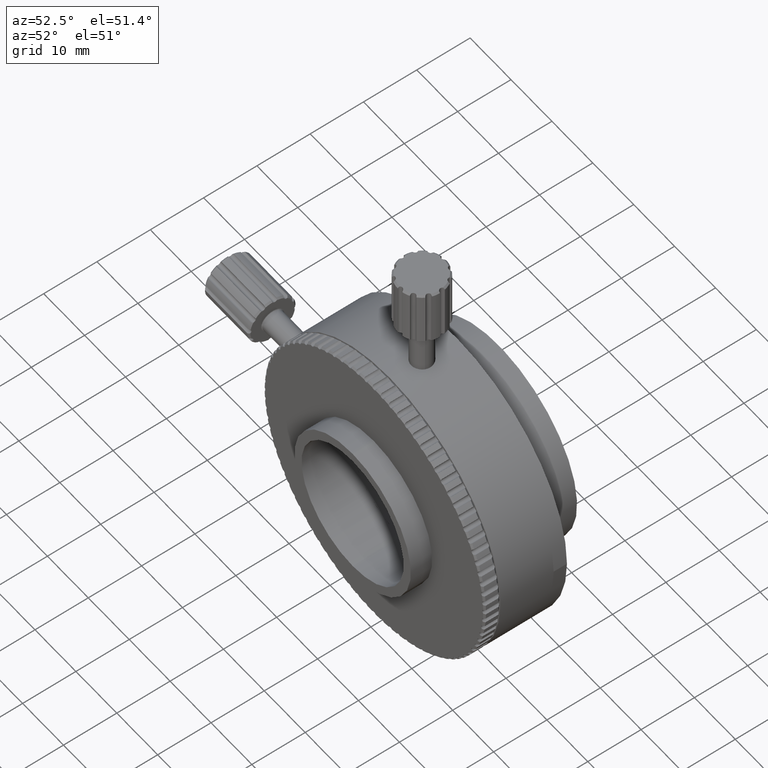
[diagram: clean part render]
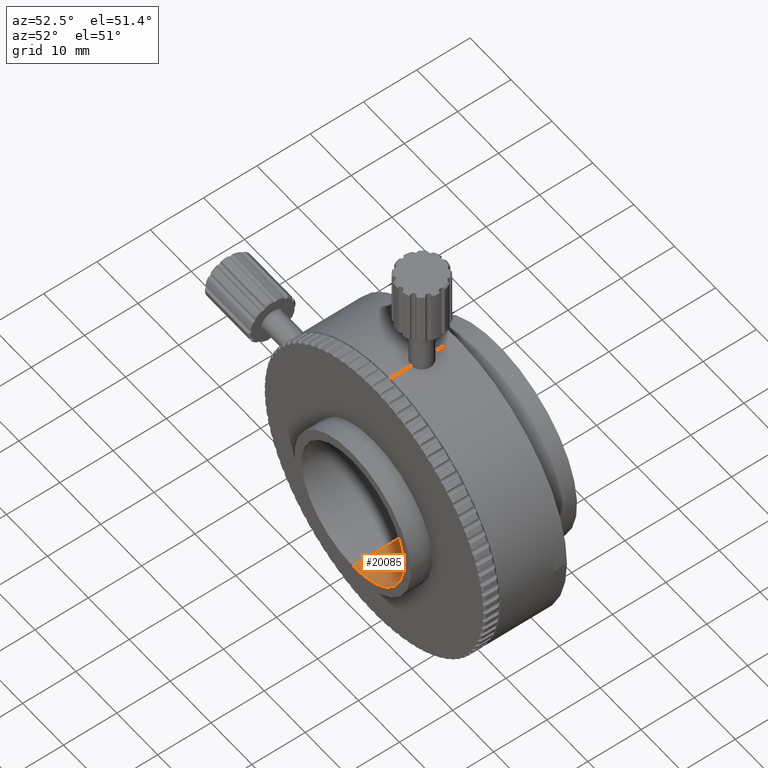
[diagram: same view with one face highlighted and labeled with its STEP entity id]
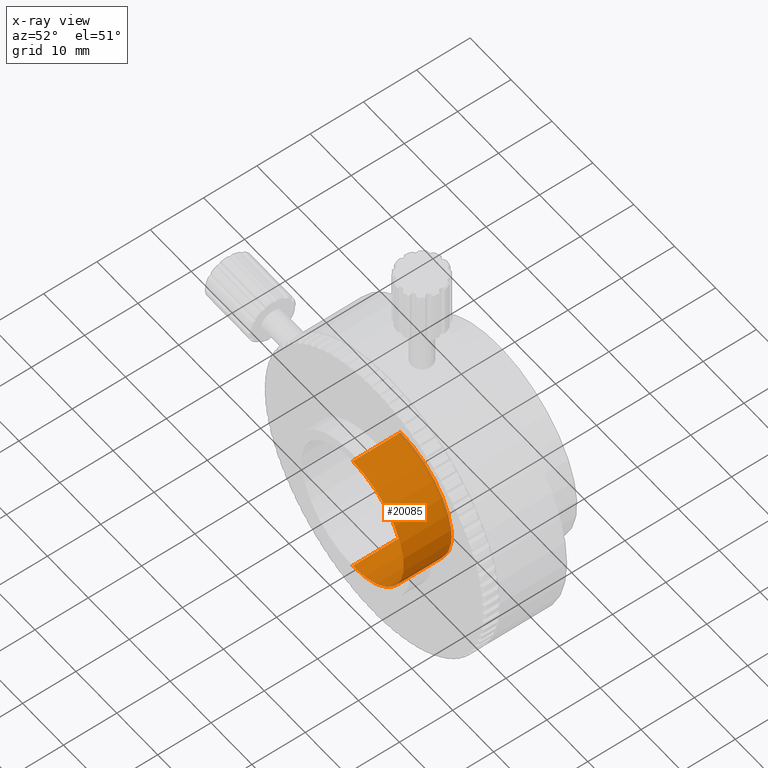
[diagram: x-ray of the same camera — body ghosted, the highlighted face saturated]
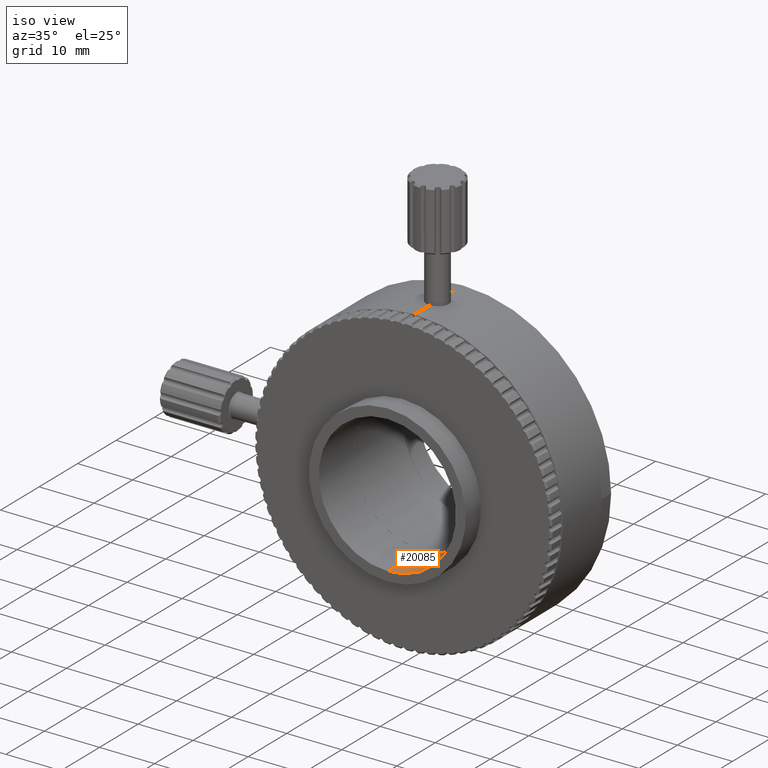
[diagram: same view with one face highlighted and labeled with its STEP entity id]
A machine part, auxiliary view. The second image highlights one B-rep face of the part: STEP entity #20085.
The next image is the same camera in x-ray: the body ghosted, the highlighted face saturated — about 4% of this face is hidden behind the body in this view.
A second angle (iso view) of the same face is appended — the face is thin or edge-on in the first view.
In plain terms, the highlighted cylindrical surface (partial cylindrical patch) has radius 12.5 mm, axis along (-0, 1, -0).
Its self-contained STEP definition (entity closure, byte-faithful):
#78 = EDGE_LOOP ( 'NONE', ( #1869, #10575, #4630, #15193 ) ) ;
#1146 = VECTOR ( 'NONE', #10891, 1000.000000000000000 ) ;
#1869 = ORIENTED_EDGE ( 'NONE', *, *, #5030, .F. ) ;
#2570 = CARTESIAN_POINT ( 'NONE',  ( 9.352963249104790933, 108.6097110134007835, 76.45373576090617007 ) ) ;
#2798 = DIRECTION ( 'NONE',  ( -0.000000000000000000, 1.000000000000000000, -0.000000000000000000 ) ) ;
#2840 = DIRECTION ( 'NONE',  ( -0.000000000000000000, 1.000000000000000000, -0.000000000000000000 ) ) ;
#2848 = AXIS2_PLACEMENT_3D ( 'NONE', #12153, #17416, #8525 ) ;
#3208 = EDGE_CURVE ( 'NONE', #8330, #16623, #8999, .T. ) ;
#3875 = CARTESIAN_POINT ( 'NONE',  ( 9.352963249104790933, 108.6097110134007835, 88.95373576090615586 ) ) ;
#4630 = ORIENTED_EDGE ( 'NONE', *, *, #3208, .T. ) ;
#5030 = EDGE_CURVE ( 'NONE', #21589, #20497, #20658, .T. ) ;
#5560 = CIRCLE ( 'NONE', #8548, 12.49999999999998401 ) ;
#6307 = CARTESIAN_POINT ( 'NONE',  ( 9.352963249104792709, 108.6097110134007835, 63.95373576090618428 ) ) ;
#7832 = CARTESIAN_POINT ( 'NONE',  ( 9.352963249104790933, -2.929857331922868457, 88.95373576090615586 ) ) ;
#7929 = DIRECTION ( 'NONE',  ( 0.000000000000000000, 0.000000000000000000, 1.000000000000000000 ) ) ;
#8330 = VERTEX_POINT ( 'NONE', #7832 ) ;
#8525 = DIRECTION ( 'NONE',  ( 0.000000000000000000, 0.000000000000000000, 1.000000000000000000 ) ) ;
#8548 = AXIS2_PLACEMENT_3D ( 'NONE', #18969, #2840, #10184 ) ;
#8999 = LINE ( 'NONE', #3875, #1146 ) ;
#9558 = AXIS2_PLACEMENT_3D ( 'NONE', #2570, #9686, #7929 ) ;
#9686 = DIRECTION ( 'NONE',  ( -0.000000000000000000, 1.000000000000000000, -0.000000000000000000 ) ) ;
#10184 = DIRECTION ( 'NONE',  ( 0.000000000000000000, 0.000000000000000000, 1.000000000000000000 ) ) ;
#10575 = ORIENTED_EDGE ( 'NONE', *, *, #18177, .F. ) ;
#10891 = DIRECTION ( 'NONE',  ( -0.000000000000000000, 1.000000000000000000, -0.000000000000000000 ) ) ;
#12153 = CARTESIAN_POINT ( 'NONE',  ( 9.352963249104790933, 6.070142668077139092, 76.45373576090617007 ) ) ;
#12591 = CARTESIAN_POINT ( 'NONE',  ( 9.352963249104792709, -2.929857331922868457, 63.95373576090618428 ) ) ;
#12927 = CIRCLE ( 'NONE', #2848, 12.49999999999998401 ) ;
#14184 = VECTOR ( 'NONE', #2798, 1000.000000000000000 ) ;
#14799 = CARTESIAN_POINT ( 'NONE',  ( 9.352963249104792709, 6.070142668077139092, 63.95373576090618428 ) ) ;
#15193 = ORIENTED_EDGE ( 'NONE', *, *, #19820, .T. ) ;
#15842 = CARTESIAN_POINT ( 'NONE',  ( 9.352963249104790933, 6.070142668077139092, 88.95373576090615586 ) ) ;
#16623 = VERTEX_POINT ( 'NONE', #15842 ) ;
#17416 = DIRECTION ( 'NONE',  ( -0.000000000000000000, 1.000000000000000000, -0.000000000000000000 ) ) ;
#18177 = EDGE_CURVE ( 'NONE', #8330, #21589, #5560, .T. ) ;
#18969 = CARTESIAN_POINT ( 'NONE',  ( 9.352963249104790933, -2.929857331922868457, 76.45373576090617007 ) ) ;
#19820 = EDGE_CURVE ( 'NONE', #16623, #20497, #12927, .T. ) ;
#20085 = ADVANCED_FACE ( 'NONE', ( #21703 ), #21937, .F. ) ;
#20497 = VERTEX_POINT ( 'NONE', #14799 ) ;
#20658 = LINE ( 'NONE', #6307, #14184 ) ;
#21589 = VERTEX_POINT ( 'NONE', #12591 ) ;
#21703 = FACE_OUTER_BOUND ( 'NONE', #78, .T. ) ;
#21937 = CYLINDRICAL_SURFACE ( 'NONE', #9558, 12.49999999999998401 ) ;